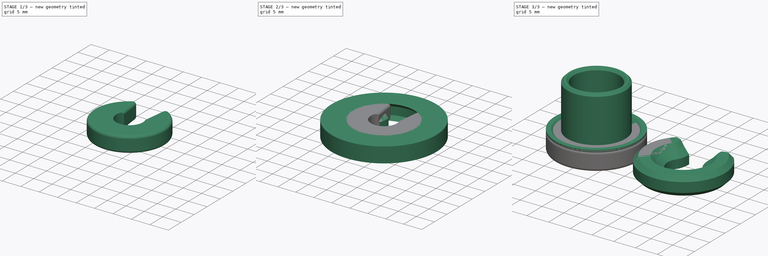
[diagram: build sequence overview — one tinted view per stage of 3, left to right]
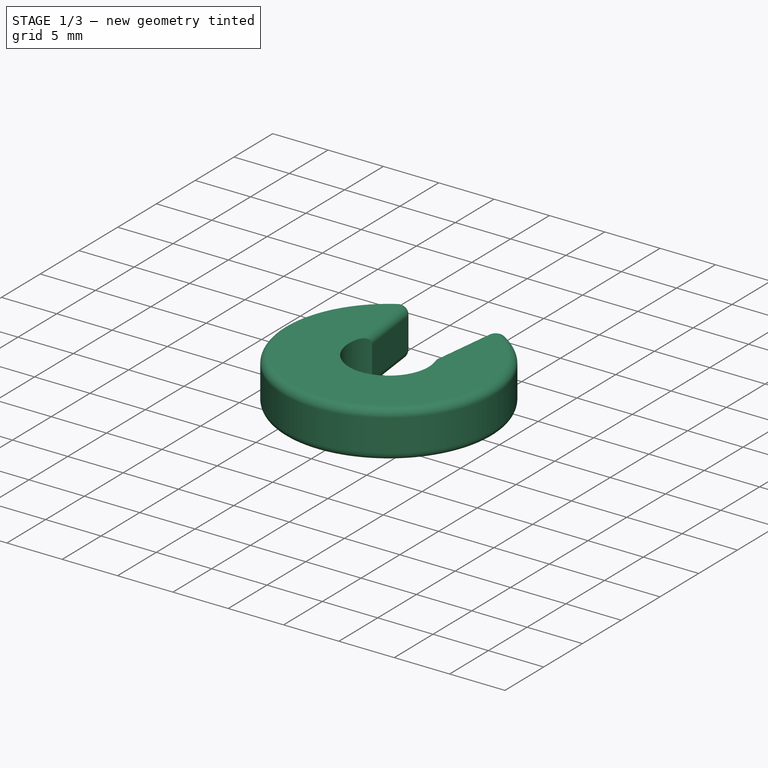
[diagram: stage 1 of 3 — iso view after this stage's code; geometry added in this stage tinted green]
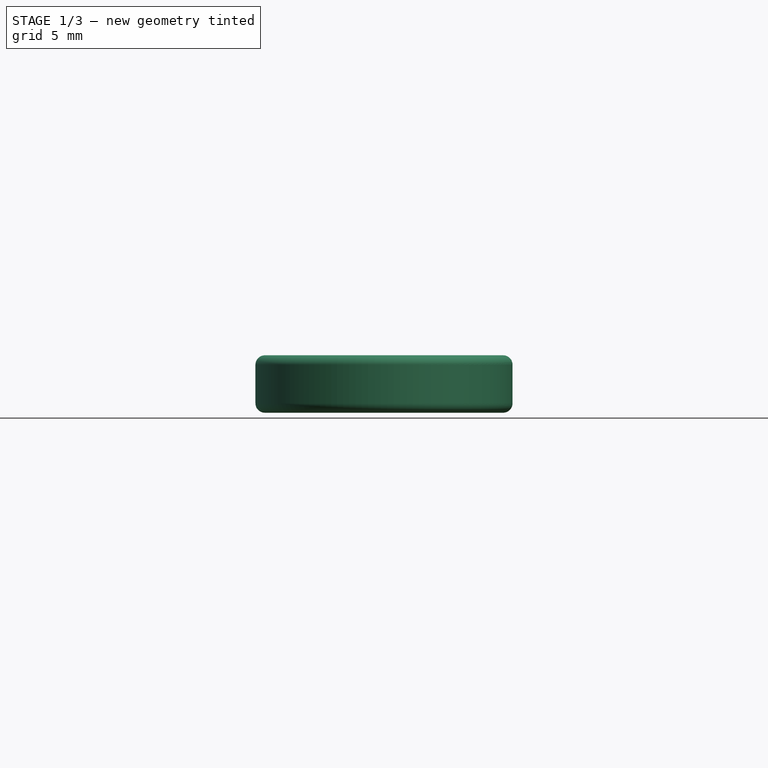
[diagram: stage 1 of 3 — front view after this stage's code; geometry added in this stage tinted green]
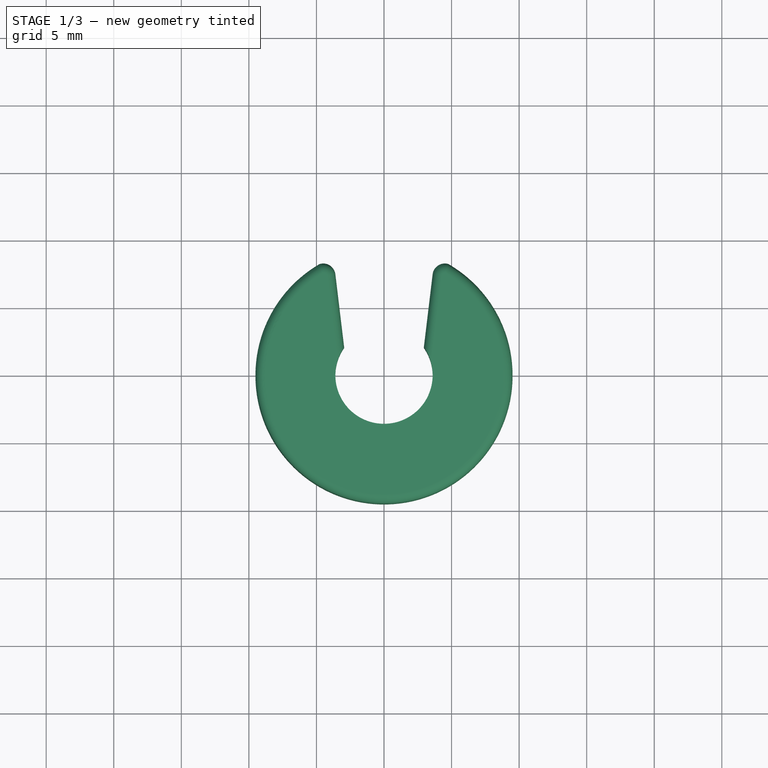
[diagram: stage 1 of 3 — top view after this stage's code; geometry added in this stage tinted green]
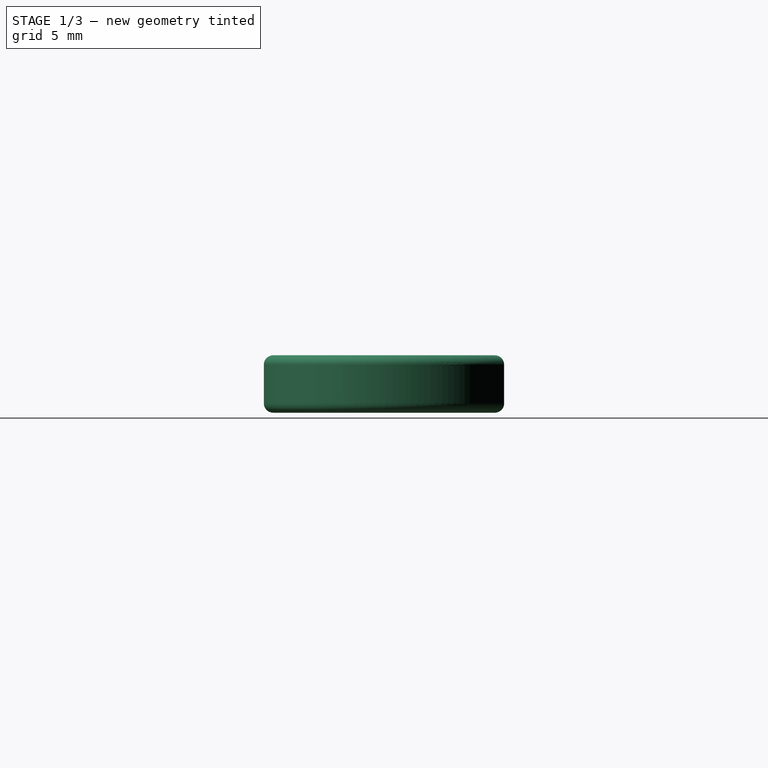
[diagram: stage 1 of 3 — right view after this stage's code; geometry added in this stage tinted green]
FCSTD DOCUMENT  (FreeCAD 1.0R39109 (Git))
Label: M56_pivot_linkage_stopper
License: All rights reserved
LicenseURL: https://en.wikipedia.org/wiki/All_rights_reserved
objects: Sketcher::SketchObject×5, PartDesign::Body×4, PartDesign::Revolution×2, Spreadsheet::Sheet×1, PartDesign::AdditivePipe×1, Part::Cut×1, PartDesign::Pad×1, PartDesign::Fillet×1
note: 30 computed .brp shape members not serialized (recipe doc carries the construction recipe); baked Part::Feature solids carry a one-line shape summary decoded from their .brp

FEATURE [Sketcher::SketchObject] Sketch004
  ArcFitTolerance = 1e-06
  AttachmentSupport = -> [XY_Plane003]
  FullyConstrained = true
  MakeInternals = false
  MapMode = 5
  expr: Constraints[1] = Spreadsheet.sld
  expr: Constraints[3] = Spreadsheet.ld
  sketch-geometry (14):
    g0: ArcOfCircle CenterX=0 CenterY=0 CenterZ=0 NormalX=0 NormalY=0 NormalZ=1 AngleXU=0 Radius=3.6 StartAngle=2.53073 EndAngle=6.89405
    g1: ArcOfCircle CenterX=0 CenterY=0 CenterZ=0 NormalX=0 NormalY=0 NormalZ=1 AngleXU=0 Radius=9.515 StartAngle=2.0944 EndAngle=7.33038
    g2: LineSegment StartX=-2.94895 StartY=2.06488 StartZ=0 EndX=-3.6 EndY=7.47676 EndZ=0
    g3: LineSegment StartX=2.94895 StartY=2.06488 StartZ=0 EndX=3.6 EndY=7.47676 EndZ=0
    g4: LineSegment [constr] StartX=3.6 StartY=0 StartZ=0 EndX=3.6 EndY=7.47676 EndZ=0
    g5: LineSegment [constr] StartX=-3.6 StartY=4e-16 StartZ=0 EndX=-3.6 EndY=7.47676 EndZ=0
    g6: ArcOfCircle CenterX=-4.50212 CenterY=7.36823 CenterZ=0 NormalX=0 NormalY=0 NormalZ=1 AngleXU=0 Radius=0.908626 StartAngle=0.119725 EndAngle=1.8557
    g7: ArcOfCircle CenterX=4.50212 CenterY=7.36823 CenterZ=0 NormalX=0 NormalY=0 NormalZ=1 AngleXU=0 Radius=0.908626 StartAngle=1.2859 EndAngle=3.02187
    g8: LineSegment [constr] StartX=4.50212 StartY=7.36823 StartZ=0 EndX=3.6 EndY=7.47676 EndZ=0
    g9: LineSegment [constr] StartX=-3.6 StartY=7.47676 StartZ=0 EndX=-4.50212 EndY=7.36823 EndZ=0
    g10: LineSegment [constr] StartX=2.94895 StartY=2.06488 StartZ=0 EndX=4.7575 EndY=8.24023 EndZ=0
    g11: LineSegment [constr] StartX=-2.94895 StartY=2.06488 StartZ=0 EndX=-4.7575 EndY=8.24023 EndZ=0
    g12: LineSegment [constr] StartX=-2.94895 StartY=2.06488 StartZ=0 EndX=0 EndY=2.06488 EndZ=0
    g13: LineSegment [constr] StartX=0 StartY=2.06488 StartZ=0 EndX=2.94895 EndY=2.06488 EndZ=0
  constraints (38):
    c: Coincident(g0,g-1)
    c: Diameter(g0) = 7.2
    c: Coincident(g1,g0)
    c: Diameter(g1) = 19.03
    c: Coincident(g2,g0)
    c: Coincident(g3,g0)
    c: PointOnObject(g4,g0)
    c: Vertical(g4)
    c: Tangent(g5,g0) = 1.5708
    c: Vertical(g5)
    c: Equal(g2,g3)
    c: Angle(g0) = 4.36332
    c: PointOnObject(g4,g-1)
    c: Coincident(g6,g2)
    c: Coincident(g6,g1)
    c: Coincident(g5,g2)
    c: Coincident(g7,g3)
    c: Coincident(g7,g1)
    c: Coincident(g4,g3)
    c: Coincident(g8,g7)
    c: Coincident(g8,g3)
    c: Coincident(g9,g2)
    c: Coincident(g9,g6)
    c: Angle(g3,g8) = 1.5708
    c: Coincident(g10,g0)
    c: Coincident(g10,g1)
    c: Coincident(g11,g0)
    c: Coincident(g11,g1)
    c: PointOnObject(g6,g11)
    c: PointOnObject(g7,g10)
    c: Coincident(g12,g0)
    c: PointOnObject(g12,g-2)
    c: Horizontal(g12)
    c: Coincident(g13,g12)
    c: Coincident(g13,g0)
    c: Horizontal(g13)
    c: Angle(g9,g2) = 1.5708
    c: Angle(g1) = 5.23599
FEATURE [PartDesign::Pad] Pad
  Direction = (0,0,1)
  Length = 4.25
  Length2 = 10
  Profile = -> Sketch004
  ReferenceAxis = -> Sketch004 [N_Axis]
  Refine = true
  Suppressed = false
  Type = 0
  expr: Length = Spreadsheet.srt
FEATURE [PartDesign::Fillet] Fillet
  Base = -> Pad [Edge13,Edge16,Edge10,Edge4,Edge18,Edge12,Edge15,Edge6,Edge9,Edge3,Edge17]
  BaseFeature = -> Pad
  Radius = 0.7
  Refine = true
  SupportTransform = false
  Suppressed = false
  UseAllEdges = false
FEATURE [PartDesign::Body] Body003  label="Snapring V2"
  AllowCompound = false
  Group = -> [Sketch004,Pad,Fillet]
  Origin = -> Origin003
  Placement = pos=(22,0,0) rot=(0,0,1;0rad)
  Tip = -> Fillet
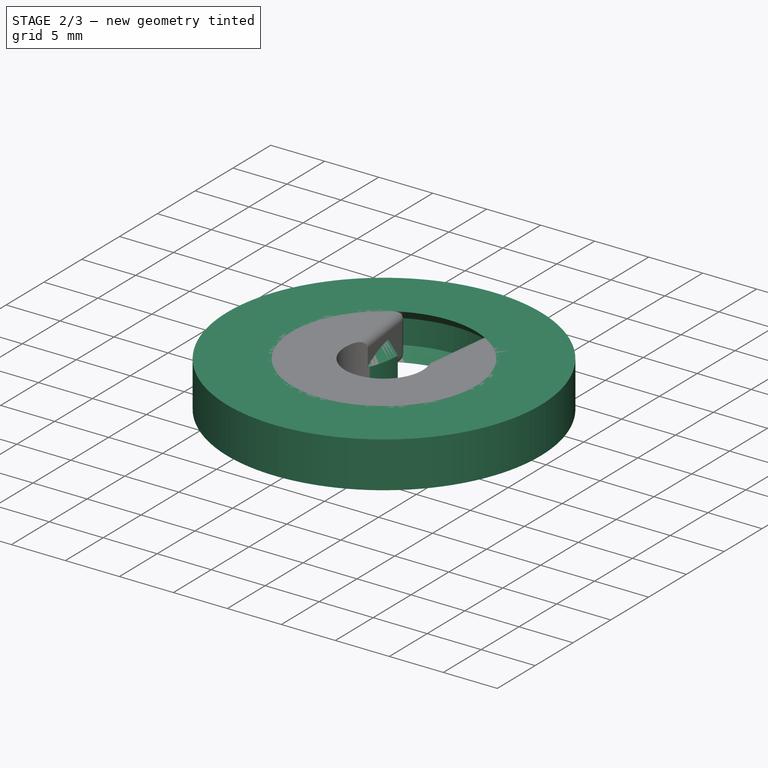
[diagram: stage 2 of 3 — iso view after this stage's code; geometry added in this stage tinted green]
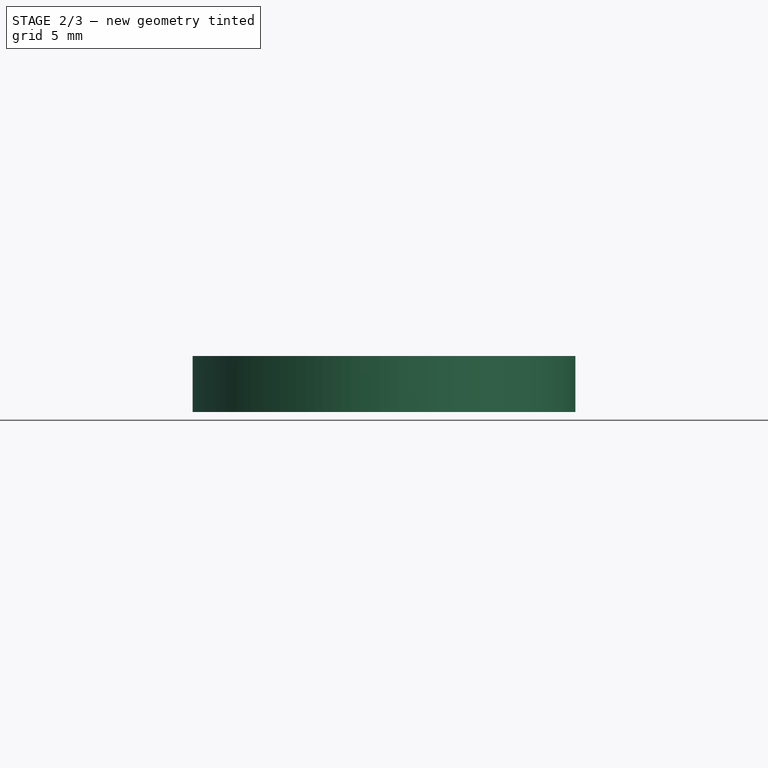
[diagram: stage 2 of 3 — front view after this stage's code; geometry added in this stage tinted green]
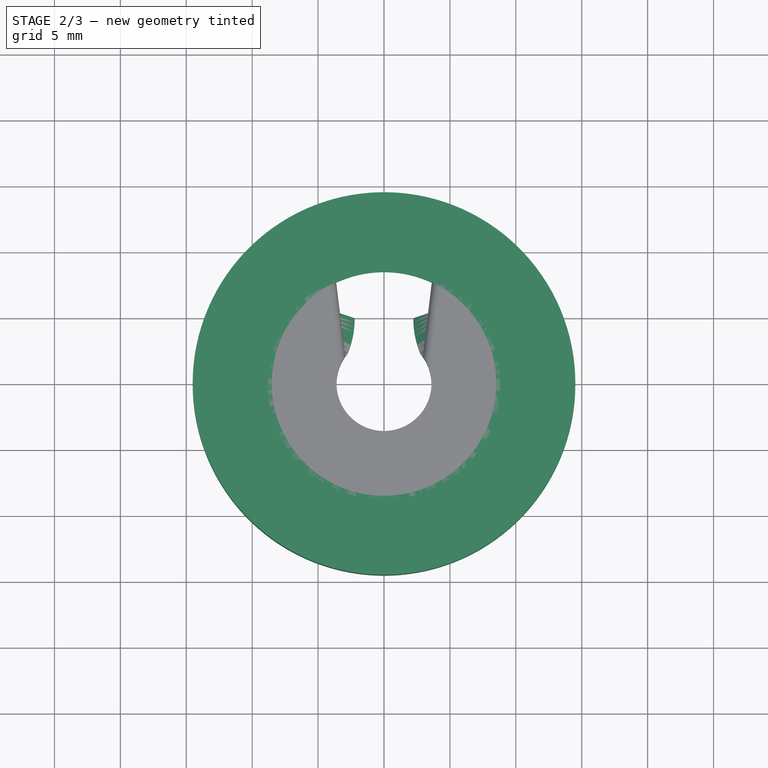
[diagram: stage 2 of 3 — top view after this stage's code; geometry added in this stage tinted green]
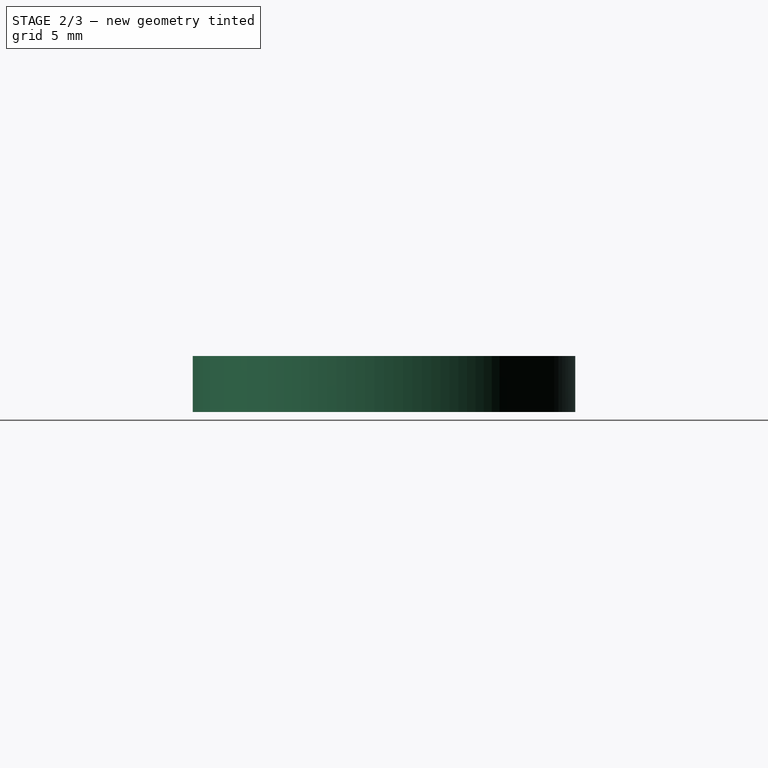
[diagram: stage 2 of 3 — right view after this stage's code; geometry added in this stage tinted green]
FEATURE [PartDesign::Body] Body  label="Bushing_insert"
  AllowCompound = false
  Group = -> [Sketch,Revolution]
  Origin = -> Origin
  Tip = -> Revolution
FEATURE [Sketcher::SketchObject] Sketch001
  ArcFitTolerance = 1e-06
  AttachmentSupport = -> [XZ_Plane001]
  FullyConstrained = true
  MakeInternals = false
  MapMode = 5
  Placement = pos=(0,0,0) rot=(1,0,0;1.5708rad)
  expr: Constraints[16] = Spreadsheet.llt
  expr: Constraints[17] = Spreadsheet.sld / 2
  expr: Constraints[18] = Spreadsheet.bid / 2
  expr: Constraints[36] = Spreadsheet.srt
  expr: Constraints[9] = Spreadsheet.ld / 2
  sketch-geometry (14):
    g0: LineSegment StartX=-3.6 StartY=0 StartZ=0 EndX=-3.6 EndY=2 EndZ=0
    g1: LineSegment StartX=-3.6 StartY=2 StartZ=0 EndX=-5.2 EndY=3.25 EndZ=0
    g2: LineSegment StartX=-6.2 StartY=4.25 StartZ=0 EndX=-8.515 EndY=4.25 EndZ=0
    g3: LineSegment StartX=-9.515 StartY=3.25 StartZ=0 EndX=-9.515 EndY=1 EndZ=0
    g4: LineSegment StartX=-9.515 StartY=1 StartZ=0 EndX=-8.515 EndY=0 EndZ=0
    g5: LineSegment StartX=-8.515 StartY=0 StartZ=0 EndX=-3.6 EndY=0 EndZ=0
    g6: LineSegment [constr] StartX=-9.515 StartY=1 StartZ=0 EndX=-8.515 EndY=1 EndZ=0
    g7: LineSegment [constr] StartX=-8.515 StartY=1 StartZ=0 EndX=-8.515 EndY=0 EndZ=0
    g8: LineSegment StartX=-9.515 StartY=3.25 StartZ=0 EndX=-8.515 EndY=4.25 EndZ=0
    g9: LineSegment StartX=-5.2 StartY=3.25 StartZ=0 EndX=-6.2 EndY=4.25 EndZ=0
    g10: LineSegment [constr] StartX=-9.515 StartY=3.25 StartZ=0 EndX=-8.515 EndY=3.25 EndZ=0
    g11: LineSegment [constr] StartX=-8.515 StartY=3.25 StartZ=0 EndX=-8.515 EndY=4.25 EndZ=0
    g12: LineSegment [constr] StartX=-6.2 StartY=4.25 StartZ=0 EndX=-6.2 EndY=3.25 EndZ=0
    g13: LineSegment [constr] StartX=-5.2 StartY=3.25 StartZ=0 EndX=-6.2 EndY=3.25 EndZ=0
  constraints (39):
    c: PointOnObject(g0,g-1)
    c: Vertical(g0)
    c: Coincident(g1,g0)
    c: Horizontal(g2)
    c: Vertical(g3)
    c: Coincident(g4,g3)
    c: PointOnObject(g4,g-1)
    c: Coincident(g5,g4)
    c: Coincident(g5,g0)
    c: DistanceX(g3,g-1) = 9.515
    c: Coincident(g6,g3)
    c: Horizontal(g6)
    c: Coincident(g7,g6)
    c: Coincident(g7,g4)
    c: Vertical(g7)
    c: DistanceY(g7,g7) = 1
    c: DistanceY(g0,g0) = 2
    c: DistanceX(g0,g-1) = 3.6
    c: DistanceX(g1,g-1) = 5.2
    c: Coincident(g8,g3)
    c: Coincident(g8,g2)
    c: Coincident(g9,g2)
    c: Coincident(g10,g3)
    c: Horizontal(g10)
    c: Coincident(g11,g10)
    c: Coincident(g11,g2)
    c: Vertical(g11)
    c: Coincident(g12,g2)
    c: Vertical(g12)
    c: Coincident(g13,g12)
    c: Horizontal(g13)
    c: Equal(g7,g6)
    c: Equal(g6,g10)
    c: Equal(g10,g11)
    c: Equal(g11,g12)
    c: Equal(g12,g13)
    c: DistanceY(g-1,g2) = 4.25
    c: Coincident(g1,g9)
    c: Coincident(g13,g1)
FEATURE [Sketcher::SketchObject] Sketch002
  ArcFitTolerance = 1e-06
  AttachmentSupport = -> [XY_Plane001]
  FullyConstrained = true
  MakeInternals = false
  MapMode = 5
  expr: Constraints[1] = Spreadsheet.sld
  sketch-geometry (7):
    g0: ArcOfCircle CenterX=0 CenterY=0 CenterZ=0 NormalX=0 NormalY=0 NormalZ=1 AngleXU=0 Radius=3.6 StartAngle=2.44346 EndAngle=6.98132
    g1: ArcOfCircle CenterX=9.22194 CenterY=5 CenterZ=0 NormalX=0 NormalY=0 NormalZ=1 AngleXU=0 Radius=7 StartAngle=3.14159 EndAngle=3.5354
    g2: LineSegment [constr] StartX=2.22194 StartY=5 StartZ=0 EndX=9.22194 EndY=5 EndZ=0
    g3: LineSegment [constr] StartX=9.22194 StartY=5 StartZ=0 EndX=9.22194 EndY=0 EndZ=0
    g4: ArcOfCircle CenterX=-9.22194 CenterY=5 CenterZ=0 NormalX=0 NormalY=0 NormalZ=1 AngleXU=0 Radius=7 StartAngle=5.88938 EndAngle=6.28319
    g5: LineSegment [constr] StartX=-9.22194 StartY=0 StartZ=0 EndX=-9.22194 EndY=5 EndZ=0
    g6: LineSegment [constr] StartX=-9.22194 StartY=5 StartZ=0 EndX=-2.22194 EndY=5 EndZ=0
  constraints (22):
    c: Coincident(g0,g-1)
    c: Diameter(g0) = 7.2
    c: Horizontal(g0,g0)
    c: Angle(g0) = 4.53786
    c: Coincident(g1,g0)
    c: Horizontal(g1,g1)
    c: Coincident(g2,g1)
    c: Coincident(g2,g1)
    c: Coincident(g3,g1)
    c: PointOnObject(g3,g-1)
    c: Vertical(g3)
    c: DistanceY(g3,g3) = 5
    c: DistanceX(g2,g2) = 7
    c: Coincident(g4,g0)
    c: Horizontal(g4,g4)
    c: PointOnObject(g5,g-1)
    c: Coincident(g5,g4)
    c: Vertical(g5)
    c: Coincident(g6,g4)
    c: Coincident(g6,g4)
    c: Equal(g6,g2)
    c: Equal(g3,g5)
FEATURE [PartDesign::AdditivePipe] AdditivePipe
  AuxilleryCurvelinear = true
  AuxillerySpineTangent = false
  Binormal = (0,0,0)
  Mode = 0
  Placement = pos=(0,0,0) rot=(1,0,0;1.5708rad)
  Profile = -> Sketch001
  Refine = true
  Spine = -> Sketch002
  SpineTangent = false
  Suppressed = false
  Transformation = 0
  Transition = 0
FEATURE [PartDesign::Body] Body001  label="Locking_clip_spring"
  AllowCompound = false
  Group = -> [Sketch001,Sketch002,AdditivePipe]
  Origin = -> Origin001
  Tip = -> AdditivePipe
FEATURE [Sketcher::SketchObject] Sketch003
  ArcFitTolerance = 1e-06
  AttachmentSupport = -> [XZ_Plane002]
  FullyConstrained = true
  MakeInternals = false
  MapMode = 5
  Placement = pos=(0,0,0) rot=(1,0,0;1.5708rad)
  expr: Constraints[25] = Spreadsheet.ld / 2
  expr: Constraints[26] = Spreadsheet.srt
  sketch-geometry (10):
    g0: LineSegment StartX=-8.515 StartY=0 StartZ=0 EndX=-9.515 EndY=1 EndZ=0
    g1: LineSegment StartX=-9.515 StartY=1 StartZ=0 EndX=-9.515 EndY=3.25 EndZ=0
    g2: LineSegment StartX=-9.515 StartY=3.25 StartZ=0 EndX=-8.515 EndY=4.25 EndZ=0
    g3: LineSegment StartX=-8.515 StartY=4.25 StartZ=0 EndX=-14.515 EndY=4.25 EndZ=0
    g4: LineSegment StartX=-14.515 StartY=4.25 StartZ=0 EndX=-14.515 EndY=0 EndZ=0
    g5: LineSegment StartX=-14.515 StartY=0 StartZ=0 EndX=-8.515 EndY=0 EndZ=0
    g6: LineSegment [constr] StartX=-8.515 StartY=0 StartZ=0 EndX=-9.515 EndY=0 EndZ=0
    g7: LineSegment [constr] StartX=-9.515 StartY=0 StartZ=0 EndX=-9.515 EndY=1 EndZ=0
    g8: LineSegment [constr] StartX=-9.515 StartY=3.25 StartZ=0 EndX=-9.515 EndY=4.25 EndZ=0
    g9: LineSegment [constr] StartX=-9.515 StartY=4.25 StartZ=0 EndX=-8.515 EndY=4.25 EndZ=0
  constraints (28):
    c: PointOnObject(g0,g-1)
    c: Coincident(g1,g0)
    c: Vertical(g1)
    c: Coincident(g2,g1)
    c: Coincident(g3,g2)
    c: Horizontal(g3)
    c: Coincident(g4,g3)
    c: Vertical(g4)
    c: Coincident(g5,g4)
    c: Coincident(g5,g0)
    c: Horizontal(g5)
    c: Coincident(g6,g0)
    c: PointOnObject(g6,g5)
    c: Coincident(g7,g6)
    c: Coincident(g7,g0)
    c: Vertical(g7)
    c: Coincident(g8,g1)
    c: PointOnObject(g8,g3)
    c: Vertical(g8)
    c: Coincident(g9,g8)
    c: Coincident(g9,g2)
    c: Equal(g6,g7)
    c: Equal(g7,g8)
    c: Equal(g8,g9)
    c: DistanceY(g7,g7) = 1
    c: DistanceX(g0,g-1) = 9.515
    c: DistanceY(g4,g4) = 4.25
    c: DistanceX(g3,g3) = 6
FEATURE [PartDesign::Revolution] Revolution001
  Angle = 360
  Angle2 = 60
  Axis = (0,2e-16,1)
  Base = (0,0,0)
  Placement = pos=(0,0,0) rot=(1,0,0;1.5708rad)
  Profile = -> Sketch003
  ReferenceAxis = -> Sketch003 [V_Axis]
  Refine = true
  Suppressed = false
  Type = 0
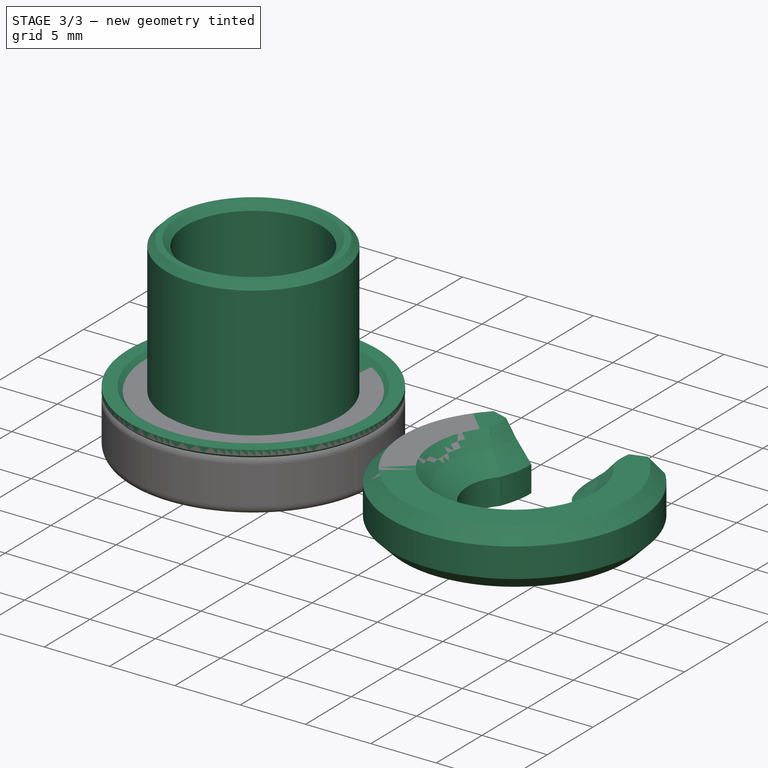
[diagram: stage 3 of 3 — iso view after this stage's code; geometry added in this stage tinted green]
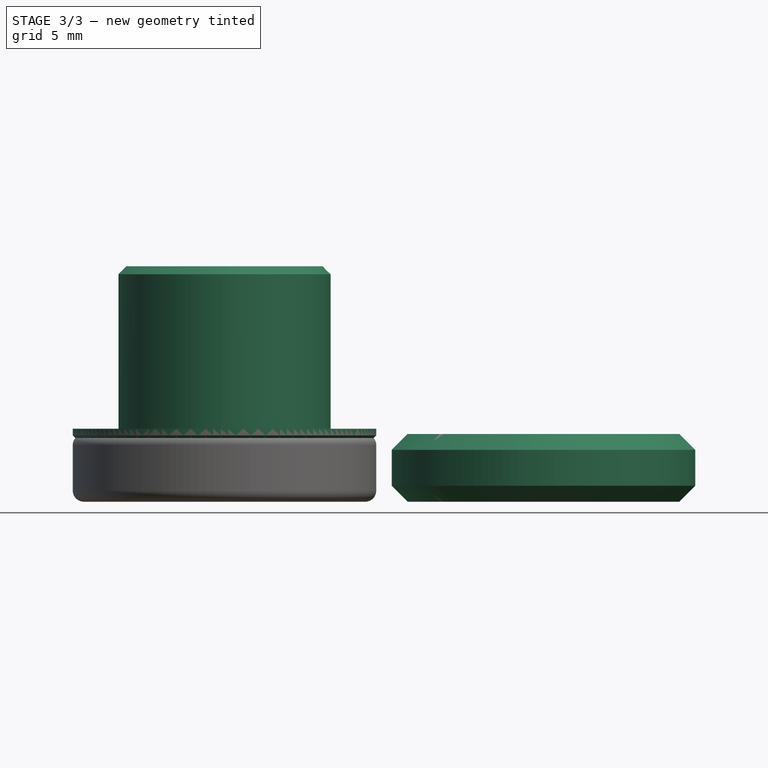
[diagram: stage 3 of 3 — front view after this stage's code; geometry added in this stage tinted green]
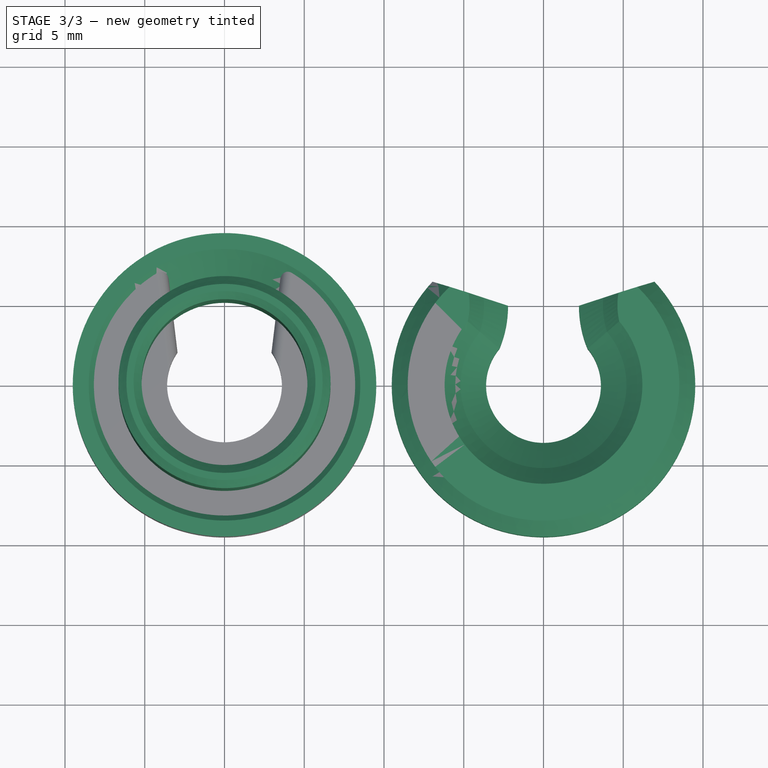
[diagram: stage 3 of 3 — top view after this stage's code; geometry added in this stage tinted green]
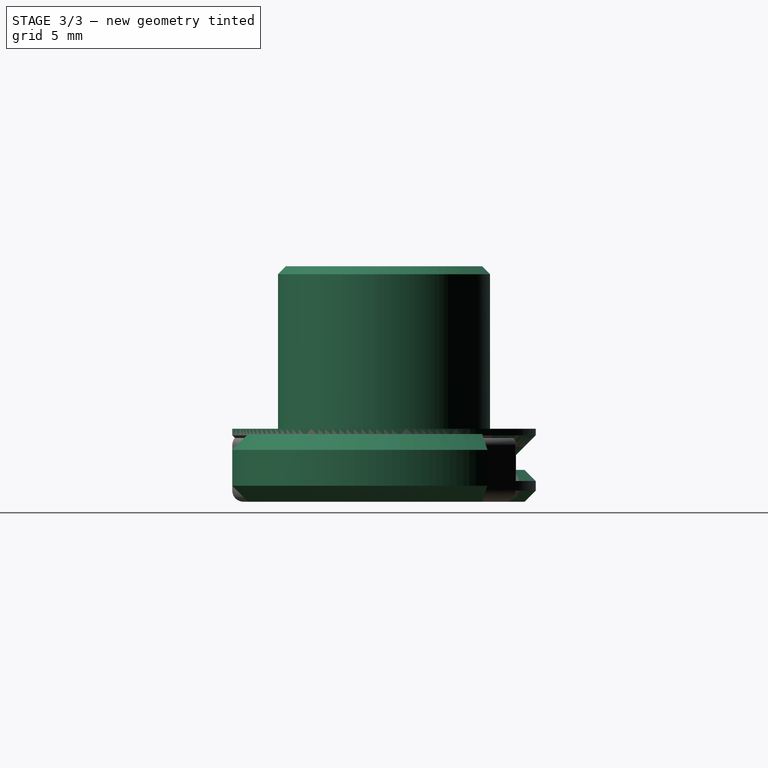
[diagram: stage 3 of 3 — right view after this stage's code; geometry added in this stage tinted green]
FEATURE [Spreadsheet::Sheet] Spreadsheet
  cells = A1='bid; B1(bid)=10.4; C1='bushing id; A2='bod; B2(bod)=13.3; C2='bushing od; A3='sl; B3(sl)=; C3='spring to lockring distance; A4='el; B4(el)=14.14; C4='end to top ring distance; A5='ld; B5(ld)=19.03; C5='lockring diameter; A6='bl; B6(bl)=10.19; C6='bushing length; A8='llt; B8(llt)=2; C8='lock lip thickness; A9='sld; B9(sld)=7.2; C9='snap lock diameter; A10='lrs; B10(lrs)=130; C10='lockring slope; A11='srt; B11(srt)=4.25; C11='snapring thickness; D21=7; D22=4.25
FEATURE [Sketcher::SketchObject] Sketch
  ArcFitTolerance = 1e-06
  AttachmentSupport = -> [XZ_Plane]
  FullyConstrained = true
  MakeInternals = false
  MapMode = 5
  Placement = pos=(0,0,0) rot=(1,0,0;1.5708rad)
  expr: Constraints[34] = Spreadsheet.ld / 2
  expr: Constraints[5] = Spreadsheet.bod / 2
  expr: Constraints[63] = Spreadsheet.bid / 2
  expr: Constraints[65] = Spreadsheet.bl
  sketch-geometry (27):
    g0: LineSegment StartX=-8.815 StartY=0 StartZ=0 EndX=-6.2 EndY=0 EndZ=0
    g1: LineSegment StartX=-5.2 StartY=1 StartZ=0 EndX=-5.2 EndY=14.2621 EndZ=0
    g2: LineSegment StartX=-5.7 StartY=14.7621 StartZ=0 EndX=-6.15 EndY=14.7621 EndZ=0
    g3: LineSegment StartX=-6.15 StartY=14.7621 StartZ=0 EndX=-6.65 EndY=14.2621 EndZ=0
    g4: LineSegment StartX=-6.65 StartY=14.2621 StartZ=0 EndX=-6.65 EndY=2.70711 EndZ=0
    g5: LineSegment [constr] StartX=-6.65 StartY=14.2621 StartZ=0 EndX=-6.15 EndY=14.2621 EndZ=0
    g6: LineSegment [constr] StartX=-6.15 StartY=14.2621 StartZ=0 EndX=-6.15 EndY=14.7621 EndZ=0
    g7: LineSegment StartX=-7.35711 StartY=2 StartZ=0 EndX=-8.815 EndY=2 EndZ=0
    g8: LineSegment StartX=-8.815 StartY=2 StartZ=0 EndX=-9.515 EndY=1.3 EndZ=0
    g9: LineSegment StartX=-9.515 StartY=1.3 StartZ=0 EndX=-9.515 EndY=0.7 EndZ=0
    g10: LineSegment StartX=-9.515 StartY=0.7 StartZ=0 EndX=-8.815 EndY=0 EndZ=0
    g11: LineSegment [constr] StartX=-8.815 StartY=0 StartZ=0 EndX=-8.815 EndY=0.7 EndZ=0
    g12: LineSegment [constr] StartX=-8.815 StartY=0.7 StartZ=0 EndX=-9.515 EndY=0.7 EndZ=0
    g13: LineSegment [constr] StartX=-9.515 StartY=1.3 StartZ=0 EndX=-8.815 EndY=1.3 EndZ=0
    g14: LineSegment [constr] StartX=-8.815 StartY=1.3 StartZ=0 EndX=-8.815 EndY=2 EndZ=0
    g15: LineSegment StartX=-6.65 StartY=2.70711 StartZ=0 EndX=-8.515 EndY=4.57211 EndZ=0
    g16: LineSegment StartX=-9.515 StartY=4.15789 StartZ=0 EndX=-7.35711 EndY=2 EndZ=0
    g17: LineSegment StartX=-8.515 StartY=4.57211 StartZ=0 EndX=-9.515 EndY=4.57211 EndZ=0
    g18: LineSegment StartX=-9.515 StartY=4.57211 StartZ=0 EndX=-9.515 EndY=4.15789 EndZ=0
    g19: LineSegment [constr] StartX=-7.35711 StartY=2 StartZ=0 EndX=-6.65 EndY=2 EndZ=0
    g20: LineSegment [constr] StartX=-6.65 StartY=2 StartZ=0 EndX=-6.65 EndY=2.70711 EndZ=0
    g21: LineSegment StartX=-6.2 StartY=0 StartZ=0 EndX=-5.2 EndY=1 EndZ=0
    g22: LineSegment [constr] StartX=-6.2 StartY=0 StartZ=0 EndX=-6.2 EndY=1 EndZ=0
    g23: LineSegment [constr] StartX=-6.2 StartY=1 StartZ=0 EndX=-5.2 EndY=1 EndZ=0
    g24: LineSegment [constr] StartX=-5.7 StartY=14.7621 StartZ=0 EndX=-5.7 EndY=14.2621 EndZ=0
    g25: LineSegment [constr] StartX=-5.2 StartY=14.2621 StartZ=0 EndX=-5.7 EndY=14.2621 EndZ=0
    g26: LineSegment StartX=-5.2 StartY=14.2621 StartZ=0 EndX=-5.7 EndY=14.7621 EndZ=0
  constraints (75):
    c: Vertical(g1)
    c: Horizontal(g2)
    c: Coincident(g3,g2)
    c: Coincident(g4,g3)
    c: Vertical(g4)
    c: DistanceX(g4,g-1) = 6.65
    c: Coincident(g5,g3)
    c: Horizontal(g5)
    c: Coincident(g6,g5)
    c: Coincident(g6,g2)
    c: Vertical(g6)
    c: Equal(g6,g5)
    c: DistanceY(g6,g6) = 0.5
    c: Horizontal(g7)
    c: Coincident(g8,g7)
    c: Coincident(g9,g8)
    c: Vertical(g9)
    c: Coincident(g10,g9)
    c: Coincident(g10,g0)
    c: Coincident(g11,g0)
    c: Vertical(g11)
    c: Coincident(g12,g11)
    c: Coincident(g12,g9)
    c: Horizontal(g12)
    c: Coincident(g13,g8)
    c: Horizontal(g13)
    c: Coincident(g14,g13)
    c: Coincident(g14,g7)
    c: Vertical(g14)
    c: Equal(g11,g12)
    c: Equal(g12,g13)
    c: Equal(g13,g14)
    c: DistanceY(g11,g11) = 0.7
    c: PointOnObject(g0,g-1)
    c: DistanceX(g9,g-1) = 9.515
    c: Coincident(g15,g4)
    c: Coincident(g17,g15)
    c: Horizontal(g17)
    c: Vertical(g17,g8)
    c: Coincident(g7,g16)
    c: Coincident(g18,g17)
    c: Vertical(g18)
    c: Coincident(g16,g18)
    c: Angle(g16) = -0.785398
    c: DistanceY(g0,g7) = 2
    c: DistanceX(g17,g17) = 1
    c: Parallel(g15,g16)
    c: Coincident(g19,g7)
    c: Horizontal(g19)
    c: Coincident(g20,g19)
    c: Coincident(g20,g4)
    c: Vertical(g20)
    c: Equal(g19,g20)
    c: Distance(g7,g4) = 1
    c: PointOnObject(g0,g-1)
    c: Coincident(g21,g0)
    c: Coincident(g21,g1)
    c: Coincident(g22,g0)
    c: Vertical(g22)
    c: Coincident(g23,g22)
    c: Coincident(g23,g1)
    c: Horizontal(g23)
    c: Equal(g23,g22)
    c: DistanceX(g1,g-1) = 5.2
    c: DistanceY(g22,g22) = 1
    c: DistanceY(g17,g2) = 10.19
    c: Coincident(g24,g2)
    c: Vertical(g24)
    c: Coincident(g25,g1)
    c: Coincident(g25,g24)
    c: Horizontal(g25)
    c: Equal(g25,g24)
    c: Equal(g24,g6)
    c: Coincident(g26,g1)
    c: Coincident(g26,g2)
FEATURE [PartDesign::Revolution] Revolution
  Angle = 360
  Angle2 = 60
  Axis = (0,2e-16,1)
  Base = (0,0,0)
  Placement = pos=(0,0,0) rot=(1,0,0;1.5708rad)
  Profile = -> Sketch
  ReferenceAxis = -> Sketch [V_Axis]
  Refine = true
  Suppressed = false
  Type = 0
FEATURE [PartDesign::Body] Body002  label="Body"
  AllowCompound = false
  Group = -> [Sketch003,Revolution001]
  Origin = -> Origin002
  Tip = -> Revolution001
FEATURE [Part::Cut] Cut  label="Snapring"
  Base = -> Body001
  Placement = pos=(20,0,0) rot=(0,0,1;0rad)
  Tool = -> Body002
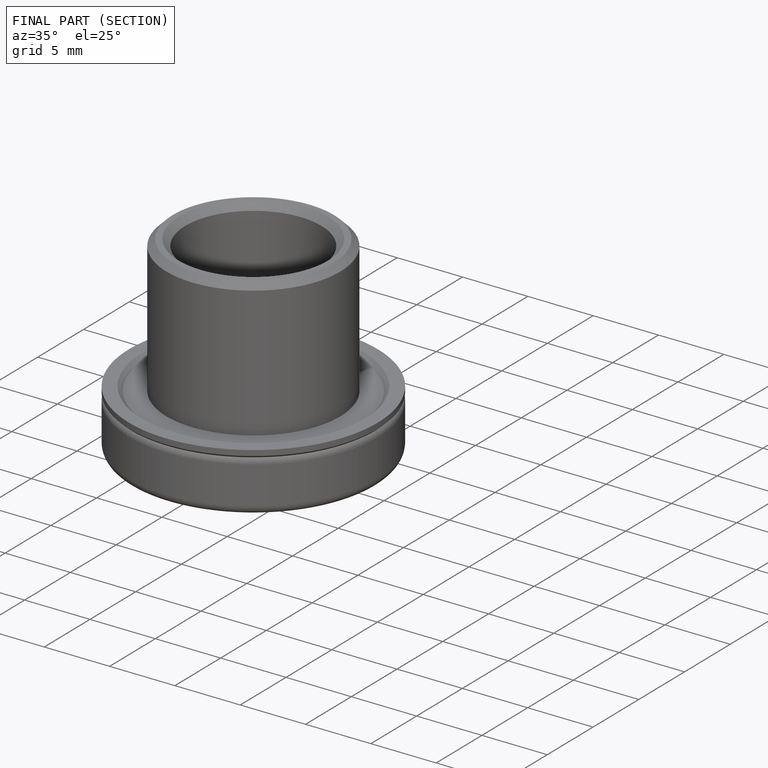
[diagram: finished part — half-section view (interior)]
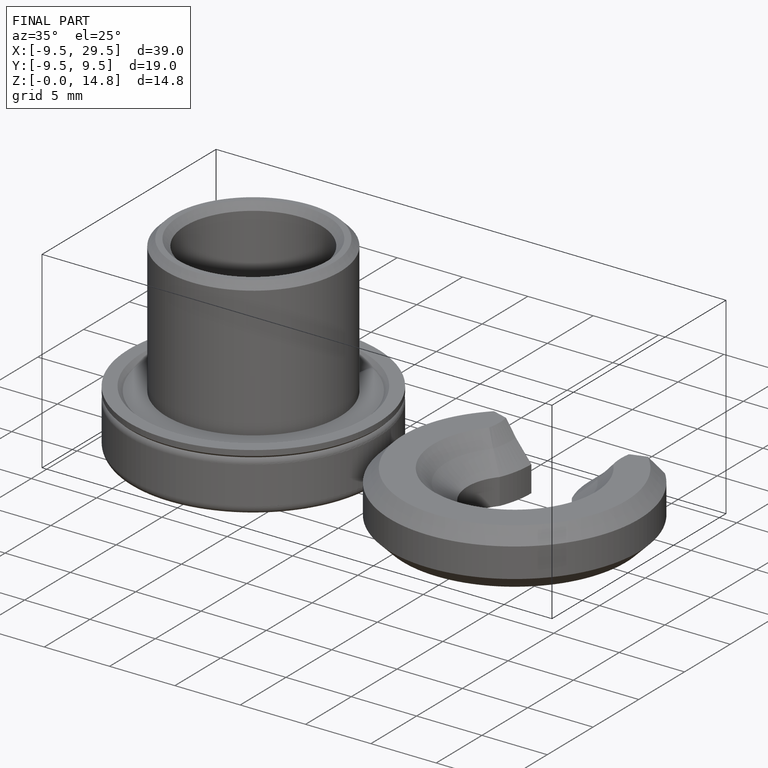
[diagram: finished part — iso view with bounding-box wireframe]
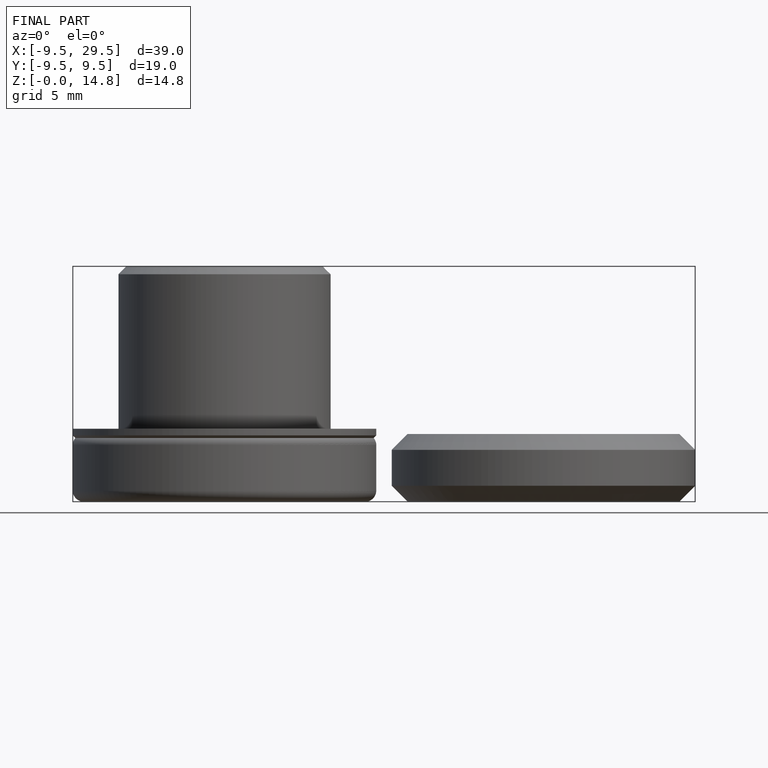
[diagram: finished part — front view with bounding-box wireframe]
